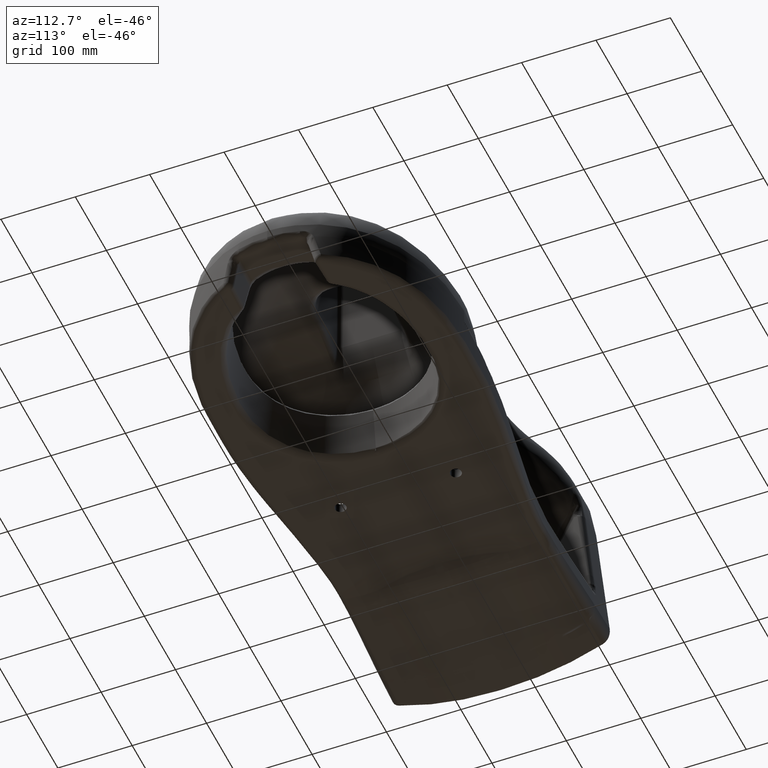
[diagram: clean part render]
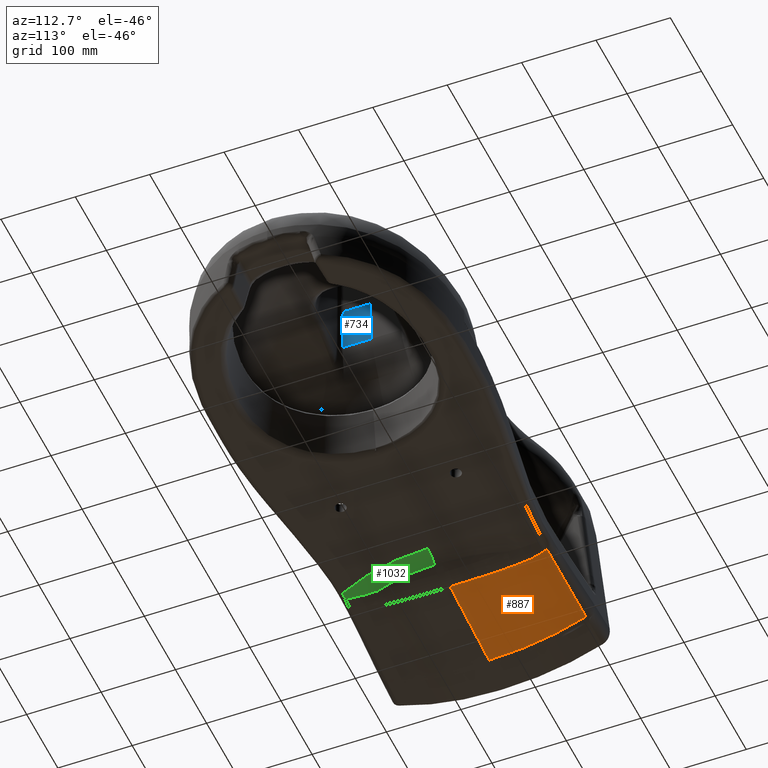
[diagram: same view with three faces highlighted in distinct colors, each labeled with its STEP entity id]
A machine part, auxiliary view with three faces highlighted in distinct colors.
Their STEP definitions:

[orange] entity #887 — the highlighted face is a freeform B-spline surface patch.
#887=ADVANCED_FACE('',(#1469),#1144,.T.);
#1144=B_SPLINE_SURFACE_WITH_KNOTS('',3,3,((#40942,#40943,#40944,#40945,
#40946,#40947,#40948,#40949,#40950,#40951,#40952,#40953,#40954,#40955,#40956,
#40957,#40958,#40959,#40960,#40961,#40962,#40963,#40964,#40965,#40966,#40967),
(#40968,#40969,#40970,#40971,#40972,#40973,#40974,#40975,#40976,#40977,
#40978,#40979,#40980,#40981,#40982,#40983,#40984,#40985,#40986,#40987,#40988,
#40989,#40990,#40991,#40992,#40993),(#40994,#40995,#40996,#40997,#40998,
#40999,#41000,#41001,#41002,#41003,#41004,#41005,#41006,#41007,#41008,#41009,
#41010,#41011,#41012,#41013,#41014,#41015,#41016,#41017,#41018,#41019),
(#41020,#41021,#41022,#41023,#41024,#41025,#41026,#41027,#41028,#41029,
#41030,#41031,#41032,#41033,#41034,#41035,#41036,#41037,#41038,#41039,#41040,
#41041,#41042,#41043,#41044,#41045)),.UNSPECIFIED.,.F.,.F.,.F.,(4,4),(4,
1,1,1,1,1,1,1,1,1,1,1,1,1,1,1,1,1,1,1,1,1,1,4),(0.,1.),(0.,0.0078125,0.015625,
0.03125,0.0625,0.09375,0.125,0.1875,0.21875,0.25,0.3125,0.375,0.5,0.625,
0.6875,0.75,0.78125,0.8125,0.875,0.90625,0.9375,0.96875,0.984375,1.),
 .UNSPECIFIED.);
#1469=FACE_OUTER_BOUND('',#1894,.T.);
#1894=EDGE_LOOP('',(#3359,#3360,#3361,#3362,#3363,#3364,#3365));
#3359=ORIENTED_EDGE('',*,*,#5409,.T.);
#3360=ORIENTED_EDGE('',*,*,#5434,.T.);
#3361=ORIENTED_EDGE('',*,*,#5421,.F.);
#3362=ORIENTED_EDGE('',*,*,#5425,.T.);
#3363=ORIENTED_EDGE('',*,*,#5435,.T.);
#3364=ORIENTED_EDGE('',*,*,#5436,.T.);
#3365=ORIENTED_EDGE('',*,*,#5437,.T.);
#4529=VERTEX_POINT('',#38287);
#4547=VERTEX_POINT('',#40014);
#4551=VERTEX_POINT('',#40559);
#4552=VERTEX_POINT('',#40573);
#4554=VERTEX_POINT('',#40724);
#4559=VERTEX_POINT('',#40932);
#4560=VERTEX_POINT('',#40937);
#5409=EDGE_CURVE('',#4547,#4529,#6243,.T.);
#5421=EDGE_CURVE('',#4551,#4552,#6255,.T.);
#5425=EDGE_CURVE('',#4551,#4554,#6259,.T.);
#5434=EDGE_CURVE('',#4529,#4552,#6266,.T.);
#5435=EDGE_CURVE('',#4554,#4559,#6267,.T.);
#5436=EDGE_CURVE('',#4559,#4560,#6268,.T.);
#5437=EDGE_CURVE('',#4560,#4547,#6269,.T.);
#6243=B_SPLINE_CURVE_WITH_KNOTS('',3,(#39964,#39965,#39966,#39967,#39968,
#39969,#39970,#39971,#39972,#39973,#39974,#39975,#39976,#39977,#39978,#39979,
#39980,#39981,#39982,#39983,#39984,#39985,#39986,#39987,#39988,#39989,#39990,
#39991,#39992,#39993,#39994,#39995,#39996,#39997,#39998,#39999,#40000,#40001,
#40002,#40003,#40004,#40005,#40006,#40007,#40008,#40009,#40010,#40011,#40012,
#40013),.UNSPECIFIED.,.F.,.F.,(4,2,2,2,1,1,1,2,2,2,2,2,2,2,2,2,2,1,1,2,
2,2,2,2,1,2,2,4),(0.,0.249999999999983,0.374999999999975,0.43749999999997,
0.468749999999968,0.484374999999967,0.492187499999967,0.496093749999967,
0.499999999999967,0.562499999999966,0.593749999999966,0.609374999999965,
0.617187499999965,0.624999999999965,0.687499999999966,0.718749999999966,
0.734374999999967,0.742187499999968,0.746093749999969,0.748046874999969,
0.749999999999969,0.812499999999973,0.843749999999975,0.859374999999975,
0.867187499999976,0.871093749999977,0.874999999999977,1.),.UNSPECIFIED.);
#6255=B_SPLINE_CURVE_WITH_KNOTS('',3,(#40560,#40561,#40562,#40563,#40564,
#40565,#40566,#40567,#40568,#40569,#40570,#40571,#40572),.UNSPECIFIED.,
 .F.,.F.,(4,1,1,1,1,1,1,1,1,1,4),(0.,0.0625003802906181,0.125000760581236,
0.250001521162472,0.375002281743709,0.500003042324945,0.625003802906181,
0.750004563487417,0.875005324068654,0.937505704359272,1.),.UNSPECIFIED.);
#6259=B_SPLINE_CURVE_WITH_KNOTS('',3,(#40726,#40727,#40728,#40729,#40730,
#40731,#40732,#40733,#40734),.UNSPECIFIED.,.F.,.F.,(4,1,1,1,1,1,4),(0.,
0.0727097936051356,0.175740593722454,0.381802193957091,0.587863794191728,
0.999986994661001,1.),.UNSPECIFIED.);
#6266=B_SPLINE_CURVE_WITH_KNOTS('',3,(#40902,#40903,#40904,#40905,#40906,
#40907,#40908,#40909,#40910,#40911,#40912,#40913,#40914,#40915,#40916,#40917,
#40918,#40919,#40920,#40921,#40922,#40923,#40924,#40925,#40926,#40927),
 .UNSPECIFIED.,.F.,.F.,(4,2,2,1,1,2,2,2,2,1,1,1,1,2,2,4),(0.,0.250000000000007,
0.375000000000011,0.437500000000012,0.468750000000013,0.484375000000014,
0.500000000000015,0.625000000000021,0.687500000000025,0.718750000000026,
0.734375000000027,0.742187500000027,0.746093750000027,0.748046875000028,
0.750000000000028,1.),.UNSPECIFIED.);
#6267=B_SPLINE_CURVE_WITH_KNOTS('',3,(#40928,#40929,#40930,#40931),
 .UNSPECIFIED.,.F.,.F.,(4,4),(0.,1.),.UNSPECIFIED.);
#6268=B_SPLINE_CURVE_WITH_KNOTS('',3,(#40933,#40934,#40935,#40936),
 .UNSPECIFIED.,.F.,.F.,(4,4),(0.,1.),.UNSPECIFIED.);
#6269=B_SPLINE_CURVE_WITH_KNOTS('',3,(#40938,#40939,#40940,#40941),
 .UNSPECIFIED.,.F.,.F.,(4,4),(0.,1.),.UNSPECIFIED.);
#38287=CARTESIAN_POINT('',(49.1034926905349,288.699473302419,-7.4142759166724));
#39964=CARTESIAN_POINT('',(49.1034186348393,158.524999999994,-32.8681138931149));
#39965=CARTESIAN_POINT('',(49.1034249232902,169.864159904032,-32.868121892641));
#39966=CARTESIAN_POINT('',(49.100862796629,181.107843913172,-32.3147940674719));
#39967=CARTESIAN_POINT('',(49.099825627548,197.747969329929,-30.697644791755));
#39968=CARTESIAN_POINT('',(49.0998670437258,203.257200241764,-30.0274206809527));
#39969=CARTESIAN_POINT('',(49.1011954016386,211.455339499791,-28.8309077129543));
#39970=CARTESIAN_POINT('',(49.1018584496097,214.177108593645,-28.4002060840552));
#39971=CARTESIAN_POINT('',(49.1026929205092,218.242142047872,-27.7071265599404));
#39972=CARTESIAN_POINT('',(49.1030695783846,220.270254217091,-27.3488300748095));
#39973=CARTESIAN_POINT('',(49.1033265747545,222.628419033638,-26.9104116630379));
#39974=CARTESIAN_POINT('',(49.1033952612057,223.80547807177,-26.6861220557886));
#39975=CARTESIAN_POINT('',(49.1034103527941,224.309494961915,-26.5889115374371));
#39976=CARTESIAN_POINT('',(49.1034170553622,224.645408737457,-26.5238633535023));
#39977=CARTESIAN_POINT('',(49.1034187044337,224.854990916483,-26.4830841477399));
#39978=CARTESIAN_POINT('',(49.1034175202034,227.000138998072,-26.0643637717254));
#39979=CARTESIAN_POINT('',(49.1045399690511,229.362935049648,-25.58479298665));
#39980=CARTESIAN_POINT('',(49.1047624281984,233.415098740704,-24.7047369335691));
#39981=CARTESIAN_POINT('',(49.1045760911339,234.850444695246,-24.3845050692997));
#39982=CARTESIAN_POINT('',(49.1040572956808,237.129135152603,-23.8588282046221));
#39983=CARTESIAN_POINT('',(49.1038561174878,237.909642597897,-23.6760402005649));
#39984=CARTESIAN_POINT('',(49.1036074239813,239.111644240845,-23.3898244025215));
#39985=CARTESIAN_POINT('',(49.103533827062,239.517518060678,-23.2924130705864));
#39986=CARTESIAN_POINT('',(49.1034270017804,240.339647949797,-23.0934579931087));
#39987=CARTESIAN_POINT('',(49.103393766281,240.716417899094,-23.0016278156976));
#39988=CARTESIAN_POINT('',(49.1033934397802,244.864673120694,-21.9811589842279));
#39989=CARTESIAN_POINT('',(49.099775957917,248.036798008012,-21.1370436883991));
#39990=CARTESIAN_POINT('',(49.1001363674521,252.037315282404,-20.0293297909989));
#39991=CARTESIAN_POINT('',(49.1008771759358,253.244511872417,-19.68631962173));
#39992=CARTESIAN_POINT('',(49.1021174593259,254.867399216619,-19.2174298869454));
#39993=CARTESIAN_POINT('',(49.1025422016221,255.377041074749,-19.0687251878471));
#39994=CARTESIAN_POINT('',(49.1030301873427,256.094692017812,-18.8577277658472));
#39995=CARTESIAN_POINT('',(49.1032364206032,256.44181425091,-18.755242758916));
#39996=CARTESIAN_POINT('',(49.1033708311346,256.826343499031,-18.6410850423433));
#39997=CARTESIAN_POINT('',(49.1034012332981,256.986763758083,-18.5933327363341));
#39998=CARTESIAN_POINT('',(49.1034149622338,257.092738087835,-18.5617598879872));
#39999=CARTESIAN_POINT('',(49.1034184904376,257.100179981922,-18.5595522016248));
#40000=CARTESIAN_POINT('',(49.1034232501064,260.303617304497,-17.6034962121108));
#40001=CARTESIAN_POINT('',(49.1035197307951,263.174968686944,-16.6981937818947));
#40002=CARTESIAN_POINT('',(49.1041054129154,267.134339416053,-15.4004775121177));
#40003=CARTESIAN_POINT('',(49.1041291212013,268.39622119624,-14.9779012713517));
#40004=CARTESIAN_POINT('',(49.104388432536,270.202575220737,-14.3621888901252));
#40005=CARTESIAN_POINT('',(49.104505891776,270.790282482629,-14.1599741051512));
#40006=CARTESIAN_POINT('',(49.1046866918289,271.650292894334,-13.8615537964116));
#40007=CARTESIAN_POINT('',(49.1047770682244,272.074910677028,-13.7135688182751));
#40008=CARTESIAN_POINT('',(49.104849571226,272.491461282516,-13.5674879583821));
#40009=CARTESIAN_POINT('',(49.1048913159796,272.767370634446,-13.470531048393));
#40010=CARTESIAN_POINT('',(49.1049045588969,272.858512264565,-13.4384693952289));
#40011=CARTESIAN_POINT('',(49.1054754723965,278.867217337643,-11.3183457604493));
#40012=CARTESIAN_POINT('',(49.1033709792051,284.089446080241,-9.27273630209305));
#40013=CARTESIAN_POINT('',(49.1034186332395,288.698772194413,-7.41253866149019));
#40014=CARTESIAN_POINT('',(49.1034040860991,158.524999573848,-32.8679556671332));
#40559=CARTESIAN_POINT('',(169.137372865242,240.15136873692,-13.1249940288783));
#40560=CARTESIAN_POINT('',(169.137372865242,240.15136873692,-13.1249940288783));
#40561=CARTESIAN_POINT('',(169.021260526215,241.125797248004,-12.9214702369093));
#40562=CARTESIAN_POINT('',(168.788034367173,243.072863554094,-12.5063672385092));
#40563=CARTESIAN_POINT('',(168.326657899586,246.960323601929,-11.6428475155558));
#40564=CARTESIAN_POINT('',(167.776482861872,251.808056916003,-10.4989369972556));
#40565=CARTESIAN_POINT('',(167.213236338117,257.609731899522,-9.01647458209387));
#40566=CARTESIAN_POINT('',(166.80407238039,263.392899638549,-7.41982654003898));
#40567=CARTESIAN_POINT('',(166.60611003322,269.154657881965,-5.70457703739924));
#40568=CARTESIAN_POINT('',(166.703436039333,274.884153602136,-3.87093171295987));
#40569=CARTESIAN_POINT('',(167.159048263085,279.608034237236,-2.24924787390814));
#40570=CARTESIAN_POINT('',(167.773654451663,283.331396896031,-0.892370319364332));
#40571=CARTESIAN_POINT('',(168.174447225811,285.168597492445,-0.197260168823203));
#40572=CARTESIAN_POINT('',(168.400737417288,286.07957339512,0.153658536019241));
#40573=CARTESIAN_POINT('',(168.40086860961,286.079843459462,0.152872856420304));
#40724=CARTESIAN_POINT('',(174.201427384095,158.524999963357,-21.3717127476495));
#40726=CARTESIAN_POINT('',(169.138146882239,240.151481975557,-13.1250945131117));
#40727=CARTESIAN_POINT('',(169.369555868553,238.209802210002,-13.5307171681475));
#40728=CARTESIAN_POINT('',(169.927002211496,233.508648023706,-14.4721611384838));
#40729=CARTESIAN_POINT('',(171.066145824876,223.249806664631,-16.3212715134277));
#40730=CARTESIAN_POINT('',(172.314099107575,209.301932360692,-18.3673013683981));
#40731=CARTESIAN_POINT('',(173.760242683139,186.824144511541,-20.6873125786835));
#40732=CARTESIAN_POINT('',(174.202894186694,169.844945371093,-21.3711734794687));
#40733=CARTESIAN_POINT('',(174.202943224459,158.525357200071,-21.3711848337436));
#40734=CARTESIAN_POINT('',(174.202943225713,158.525000000001,-21.3711848336479));
#40902=CARTESIAN_POINT('',(49.1034204895694,288.698915985801,-7.41248048731549));
#40903=CARTESIAN_POINT('',(59.9944883001794,288.435563412615,-6.67380411663091));
#40904=CARTESIAN_POINT('',(70.28399737905,288.202413478332,-5.98679268375202));
#40905=CARTESIAN_POINT('',(84.8137544172473,287.876225906971,-5.03387859519197));
#40906=CARTESIAN_POINT('',(89.5062842855716,287.771433647767,-4.72916369368346));
#40907=CARTESIAN_POINT('',(96.3189655910217,287.617584331535,-4.29142556817906));
#40908=CARTESIAN_POINT('',(99.6687802472604,287.541496423175,-4.07739000136851));
#40909=CARTESIAN_POINT('',(103.477994248233,287.453651995437,-3.83612893769635));
#40910=CARTESIAN_POINT('',(105.089324308313,287.416146218953,-3.73454017925091));
#40911=CARTESIAN_POINT('',(106.158835809546,287.391167670384,-3.66721616580819));
#40912=CARTESIAN_POINT('',(106.730494467974,287.377767688678,-3.63129170046042));
#40913=CARTESIAN_POINT('',(111.147606672714,287.273874299572,-3.35411978627534));
#40914=CARTESIAN_POINT('',(115.499297720532,287.166332410424,-3.08500627388052));
#40915=CARTESIAN_POINT('',(122.661984190308,286.988562655315,-2.64669127610049));
#40916=CARTESIAN_POINT('',(125.155400425137,286.926573643711,-2.49480998824195));
#40917=CARTESIAN_POINT('',(129.053910669554,286.830372202027,-2.25823687254887));
#40918=CARTESIAN_POINT('',(131.042761976266,286.78146789611,-2.13776231381194));
#40919=CARTESIAN_POINT('',(133.432292534801,286.723208604783,-1.99335864436073));
#40920=CARTESIAN_POINT('',(134.644347466414,286.693803833007,-1.92019154029496));
#40921=CARTESIAN_POINT('',(135.25469592088,286.6790359273,-1.88336632243901));
#40922=CARTESIAN_POINT('',(135.517199602907,286.672693136367,-1.86753226298195));
#40923=CARTESIAN_POINT('',(135.692407767868,286.668461606362,-1.85696470286096));
#40924=CARTESIAN_POINT('',(135.7412216471,286.667282784323,-1.85402057904216));
#40925=CARTESIAN_POINT('',(152.085888344029,286.272904959679,-0.868367810756779));
#40926=CARTESIAN_POINT('',(162.912924367914,286.121895583039,-0.198310296082412));
#40927=CARTESIAN_POINT('',(168.400803515094,286.079839481723,0.1537610359087));
#40928=CARTESIAN_POINT('',(174.201391962718,158.525139644807,-21.3713274389934));
#40929=CARTESIAN_POINT('',(158.872094167661,158.525047361688,-22.7805277486326));
#40930=CARTESIAN_POINT('',(143.541001886363,158.524954485342,-24.189727691153));
#40931=CARTESIAN_POINT('',(128.209109888161,158.52486101575,-25.5988546388614));
#40932=CARTESIAN_POINT('',(128.208947487073,158.524994982752,-25.5970876513197));
#40933=CARTESIAN_POINT('',(128.209109789988,158.52514127723,-25.598854647971));
#40934=CARTESIAN_POINT('',(112.878273362086,158.525047549414,-27.0078845801886));
#40935=CARTESIAN_POINT('',(97.5466373273969,158.524953407662,-28.4168415276447));
#40936=CARTESIAN_POINT('',(82.2151962498124,158.524858851962,-29.8256528776457));
#40937=CARTESIAN_POINT('',(82.2150694728228,158.524996099842,-29.8242742258751));
#40938=CARTESIAN_POINT('',(82.2151961581706,158.525102134448,-29.8256528862255));
#40939=CARTESIAN_POINT('',(71.1777122382649,158.525034120134,-30.8398910484474));
#40940=CARTESIAN_POINT('',(60.1403293629992,158.524965971985,-31.8540537487241));
#40941=CARTESIAN_POINT('',(49.1034186349798,158.52489769,-32.8681138930096));
#40942=CARTESIAN_POINT('',(-4.6583160486944E-8,291.02523935134,-10.3805494499125));
#40943=CARTESIAN_POINT('',(-4.65831605338095E-8,290.375297897052,-10.6639724274325));
#40944=CARTESIAN_POINT('',(-4.65831604266565E-8,289.062276235828,-11.2000452247256));
#40945=CARTESIAN_POINT('',(-4.65831605190842E-8,286.447279876102,-12.2980861664943));
#40946=CARTESIAN_POINT('',(-4.65831604543313E-8,281.840044313641,-14.1448008331624));
#40947=CARTESIAN_POINT('',(-4.65831604851265E-8,275.21627151657,-16.6760027006395));
#40948=CARTESIAN_POINT('',(-4.65831604941556E-8,267.192408581047,-19.5088523623163));
#40949=CARTESIAN_POINT('',(-4.65831604880751E-8,256.401393701111,-23.0133771990192));
#40950=CARTESIAN_POINT('',(-4.65831604834877E-8,245.48345708154,-26.1092630577152));
#40951=CARTESIAN_POINT('',(-4.65831604805741E-8,234.459332461579,-28.7911803284476));
#40952=CARTESIAN_POINT('',(-4.65831604788362E-8,223.371327087772,-31.1953420038854));
#40953=CARTESIAN_POINT('',(-4.65831604789812E-8,209.40450254408,-33.6764213507824));
#40954=CARTESIAN_POINT('',(-4.65831604814154E-8,186.886566307617,-36.5206460120059));
#40955=CARTESIAN_POINT('',(-4.65831604834456E-8,158.525103693184,-37.9517842263422));
#40956=CARTESIAN_POINT('',(-4.65831604833663E-8,130.163120588111,-36.5205935791714));
#40957=CARTESIAN_POINT('',(-4.65831604835137E-8,107.645024336019,-33.6781120065105));
#40958=CARTESIAN_POINT('',(-4.65831604836499E-8,93.6783264472984,-31.1974340171921));
#40959=CARTESIAN_POINT('',(-4.65831604837587E-8,82.5906303009357,-28.7923214817821));
#40960=CARTESIAN_POINT('',(-4.65831604838677E-8,71.5668917275828,-26.1089780601851));
#40961=CARTESIAN_POINT('',(-4.65831604839765E-8,60.6493637086485,-23.0115121239822));
#40962=CARTESIAN_POINT('',(-4.65831604840855E-8,49.8585946339368,-19.5063713025226));
#40963=CARTESIAN_POINT('',(-4.65831604841672E-8,41.834034397465,-16.6752901511369));
#40964=CARTESIAN_POINT('',(-4.65831604842352E-8,35.2082789229167,-14.1488778350206));
#40965=CARTESIAN_POINT('',(-4.65831604842896E-8,29.9470699255108,-12.0282471218195));
#40966=CARTESIAN_POINT('',(-4.65831604843169E-8,27.3300253123395,-10.9348991373943));
#40967=CARTESIAN_POINT('',(-4.65831604843305E-8,26.0250000000001,-10.3800005696284));
#40968=CARTESIAN_POINT('',(56.6255830499196,289.719500224238,-6.24842863860561));
#40969=CARTESIAN_POINT('',(56.5421722148385,289.087751427292,-6.51895953380289));
#40970=CARTESIAN_POINT('',(56.3914238371756,287.810120045447,-7.04169231327252));
#40971=CARTESIAN_POINT('',(56.1409132090283,285.246007872919,-8.10728597142768));
#40972=CARTESIAN_POINT('',(55.8014272062148,280.709460021416,-9.91425153514367));
#40973=CARTESIAN_POINT('',(55.5394347124484,274.141932390033,-12.3773536814729));
#40974=CARTESIAN_POINT('',(55.5254972274262,266.170008475795,-15.1208810444427));
#40975=CARTESIAN_POINT('',(55.7316247798547,255.455517638038,-18.4921653077127));
#40976=CARTESIAN_POINT('',(56.1616747559121,244.634334172406,-21.4358195755584));
#40977=CARTESIAN_POINT('',(56.6018892339291,233.716268617313,-23.9718605439194));
#40978=CARTESIAN_POINT('',(57.0117589860073,222.736449748258,-26.239954451777));
#40979=CARTESIAN_POINT('',(57.4277434135737,208.905152936325,-28.5760173013652));
#40980=CARTESIAN_POINT('',(57.9097912720951,186.607337071911,-31.2455041456093));
#40981=CARTESIAN_POINT('',(58.1557036005797,158.525427332373,-32.5795110185327));
#40982=CARTESIAN_POINT('',(57.9098885165272,130.443165581505,-31.2455120901045));
#40983=CARTESIAN_POINT('',(57.4279342281664,108.145234733444,-28.5772041929689));
#40984=CARTESIAN_POINT('',(57.0120164767928,94.3140159730104,-26.2414087813082));
#40985=CARTESIAN_POINT('',(56.6022138090673,83.3343966139638,-23.9726717088331));
#40986=CARTESIAN_POINT('',(56.1620788870597,72.4165817438182,-21.4356619347375));
#40987=CARTESIAN_POINT('',(55.7321145859906,61.5956680497416,-18.4909205523248));
#40988=CARTESIAN_POINT('',(55.5259586217893,50.8813331319918,-15.1192485010858));
#40989=CARTESIAN_POINT('',(55.5397678567077,42.9089339100076,-12.3769159701513));
#40990=CARTESIAN_POINT('',(55.8016992908898,36.3400177267784,-9.91714795820594));
#40991=CARTESIAN_POINT('',(56.1894963309559,31.1582391843236,-7.84507589457638));
#40992=CARTESIAN_POINT('',(56.4586864474532,28.5982655584697,-6.78083793288145));
#40993=CARTESIAN_POINT('',(56.6256128534813,27.3311440420107,-6.24833304710435));
#40994=CARTESIAN_POINT('',(113.279471958136,289.654234348891,-2.1123565258662));
#40995=CARTESIAN_POINT('',(113.112650287973,289.034217411101,-2.36999533874077));
#40996=CARTESIAN_POINT('',(112.811153532648,287.779054712264,-2.87938810038691));
#40997=CARTESIAN_POINT('',(112.310132276353,285.239983534188,-3.91253447492861));
#40998=CARTESIAN_POINT('',(111.631160270726,280.728897806339,-5.67975093569244));
#40999=CARTESIAN_POINT('',(111.107175283193,274.153007358783,-8.0747533608739));
#41000=CARTESIAN_POINT('',(111.079300313149,266.155492887594,-10.7289584251367));
#41001=CARTESIAN_POINT('',(111.491555418006,255.414153321037,-13.9670021149737));
#41002=CARTESIAN_POINT('',(112.351655370121,244.586350238365,-16.7584247919692));
#41003=CARTESIAN_POINT('',(113.232084326155,233.670970977159,-19.1485894579587));
#41004=CARTESIAN_POINT('',(114.051823830311,222.695965841878,-21.2806155982362));
#41005=CARTESIAN_POINT('',(114.883792685444,208.870980797978,-23.4716619505155));
#41006=CARTESIAN_POINT('',(115.847888402487,186.586539763654,-25.9664109777802));
#41007=CARTESIAN_POINT('',(116.339713059456,158.525750971563,-27.2032865092907));
#41008=CARTESIAN_POINT('',(115.848082891351,130.464778647451,-25.9664792996052));
#41009=CARTESIAN_POINT('',(114.884174314629,108.180267661462,-23.472345077995));
#41010=CARTESIAN_POINT('',(114.052338811882,94.3553120655903,-21.2814322439919));
#41011=CARTESIAN_POINT('',(113.232733476431,83.3803967228801,-19.1490706344515));
#41012=CARTESIAN_POINT('',(112.352463632416,72.4651327849621,-16.7583945078574));
#41013=CARTESIAN_POINT('',(111.492535030278,61.6374606447632,-13.9663776792349));
#41014=CARTESIAN_POINT('',(111.080223101875,50.8961871129962,-10.7281743982165));
#41015=CARTESIAN_POINT('',(111.107841571712,42.8984193272648,-8.07459048773334));
#41016=CARTESIAN_POINT('',(111.631704440076,36.321734453492,-5.68146677995875));
#41017=CARTESIAN_POINT('',(112.407298520208,31.1676999804986,-3.6579533659008));
#41018=CARTESIAN_POINT('',(112.945678753203,28.6389541492178,-2.62282542693615));
#41019=CARTESIAN_POINT('',(113.279531565259,27.3968148322665,-2.11271422314783));
#41020=CARTESIAN_POINT('',(169.907618016613,290.829298343038,2.02372081814083));
#41021=CARTESIAN_POINT('',(169.65738551137,290.214553213001,1.77897408758896));
#41022=CARTESIAN_POINT('',(169.205140378381,288.968939094363,1.28292134376632));
#41023=CARTESIAN_POINT('',(168.453608493939,286.429068705126,0.28222225283807));
#41024=CARTESIAN_POINT('',(167.435150485499,281.898224741106,-1.4452451049736));
#41025=CARTESIAN_POINT('',(166.649173004199,275.249370963338,-3.77214780900724));
#41026=CARTESIAN_POINT('',(166.607360549133,267.148745318357,-6.33703057456305));
#41027=CARTESIAN_POINT('',(167.225743206418,256.277196200542,-9.44183369096698));
#41028=CARTESIAN_POINT('',(168.51589313459,245.339412678371,-12.0810247771123));
#41029=CARTESIAN_POINT('',(169.836536568641,234.323358888597,-14.3253131407305));
#41030=CARTESIAN_POINT('',(171.066145824876,223.249806664631,-16.3212715134277));
#41031=CARTESIAN_POINT('',(172.314099107575,209.301932360692,-18.3673013683981));
#41032=CARTESIAN_POINT('',(173.760242683139,186.824144511541,-20.6873125786835));
#41033=CARTESIAN_POINT('',(174.497979668593,158.526074610753,-21.8270567687811));
#41034=CARTESIAN_POINT('',(173.760534416436,130.227989657252,-20.6874412778383));
#41035=CARTESIAN_POINT('',(172.314671551353,107.750176888419,-18.3674807317534));
#41036=CARTESIAN_POINT('',(171.066918297233,93.8022834290375,-16.321450475408));
#41037=CARTESIAN_POINT('',(169.837510294056,82.7287112802062,-14.3254643288024));
#41038=CARTESIAN_POINT('',(168.517105528033,71.7126374520575,-12.0811218497097));
#41039=CARTESIAN_POINT('',(167.227212624826,60.7748460432788,-9.44182957487743));
#41040=CARTESIAN_POINT('',(166.608744732222,49.9032730750365,-6.33709506407966));
#41041=CARTESIAN_POINT('',(166.650172436977,41.8026161087142,-3.77225977404771));
#41042=CARTESIAN_POINT('',(167.435966739524,35.1535620303622,-1.44578037044394));
#41043=CARTESIAN_POINT('',(168.599357859721,29.9755912156016,0.529174394042404));
#41044=CARTESIAN_POINT('',(169.406928209214,27.4522329732791,1.53519231027677));
#41045=CARTESIAN_POINT('',(169.907707427298,26.2221557530282,2.02290983207631));

[blue] entity #734 — the highlighted planar face has unit normal (-0.995, 0, 0.0998).
#170=LINE('',#11869,#339);
#174=LINE('',#17004,#343);
#175=LINE('',#17311,#344);
#339=VECTOR('',#6779,1.);
#343=VECTOR('',#6825,1.);
#344=VECTOR('',#6826,1.);
#599=PLANE('',#6576);
#734=ADVANCED_FACE('',(#1316),#599,.F.);
#1316=FACE_OUTER_BOUND('',#1741,.T.);
#1741=EDGE_LOOP('',(#2638,#2639,#2640,#2641));
#2638=ORIENTED_EDGE('',*,*,#4996,.F.);
#2639=ORIENTED_EDGE('',*,*,#5097,.F.);
#2640=ORIENTED_EDGE('',*,*,#5072,.T.);
#2641=ORIENTED_EDGE('',*,*,#5092,.F.);
#4315=VERTEX_POINT('',#11545);
#4320=VERTEX_POINT('',#11870);
#4365=VERTEX_POINT('',#16247);
#4367=VERTEX_POINT('',#16268);
#4996=EDGE_CURVE('',#4320,#4315,#170,.T.);
#5072=EDGE_CURVE('',#4365,#4367,#6015,.T.);
#5092=EDGE_CURVE('',#4315,#4367,#174,.T.);
#5097=EDGE_CURVE('',#4365,#4320,#175,.T.);
#6015=B_SPLINE_CURVE_WITH_KNOTS('',3,(#16269,#16270,#16271,#16272,#16273,
#16274),.UNSPECIFIED.,.F.,.F.,(4,2,4),(0.,0.209091814394291,1.),
 .UNSPECIFIED.);
#6576=AXIS2_PLACEMENT_3D('',#17312,#6827,#6828);
#6779=DIRECTION('',(-0.0997993756290842,0.,-0.995007580184214));
#6825=DIRECTION('',(0.,-1.,0.));
#6826=DIRECTION('',(0.,1.,0.));
#6827=DIRECTION('',(-0.995007580184214,0.,0.0997993756290842));
#6828=DIRECTION('',(-0.0997993756290842,0.,-0.995007580184214));
#11545=CARTESIAN_POINT('',(413.699043104875,153.524999998712,194.585047238566));
#11869=CARTESIAN_POINT('',(413.699043104875,153.524999996135,194.585047238566));
#11870=CARTESIAN_POINT('',(419.419732896455,153.525,251.620771867346));
#16247=CARTESIAN_POINT('',(419.419732896455,117.221079169696,251.620771867346));
#16268=CARTESIAN_POINT('',(413.699043104875,114.404500175682,194.585047238566));
#16269=CARTESIAN_POINT('',(419.419732896455,117.221079169696,251.620771867346));
#16270=CARTESIAN_POINT('',(419.021016427085,117.024771298948,247.645537484704));
#16271=CARTESIAN_POINT('',(418.622299957716,116.8284634282,243.670303102063));
#16272=CARTESIAN_POINT('',(416.715403360522,115.889603763529,224.658394892469));
#16273=CARTESIAN_POINT('',(415.207223232698,115.147051969606,209.621721065518));
#16274=CARTESIAN_POINT('',(413.699043104875,114.404500175682,194.585047238566));
#17004=CARTESIAN_POINT('',(413.699043104875,146.006803727126,194.585047238566));
#17311=CARTESIAN_POINT('',(419.419732896455,111.243337851974,251.620771867346));
#17312=CARTESIAN_POINT('',(413.699043104875,146.006803727126,194.585047238566));

[green] entity #1032 — the highlighted face is a freeform B-spline surface patch.
#554=(
BOUNDED_SURFACE()
B_SPLINE_SURFACE(3,2,((#62060,#62061,#62062),(#62063,#62064,#62065),(#62066,
#62067,#62068),(#62069,#62070,#62071),(#62072,#62073,#62074),(#62075,#62076,
#62077)),.UNSPECIFIED.,.F.,.F.,.F.)
B_SPLINE_SURFACE_WITH_KNOTS((4,2,4),(3,3),(0.,0.5,1.),(0.,1.),
 .UNSPECIFIED.)
GEOMETRIC_REPRESENTATION_ITEM()
RATIONAL_B_SPLINE_SURFACE(((1.,0.913775482572515,1.),(1.,0.917281707109326,
1.),(1.,0.919842662435215,1.),(1.,0.923120414618565,1.),(1.,0.923895388322448,
1.),(1.,0.923879186518872,1.)))
REPRESENTATION_ITEM('')
SURFACE()
);
#1032=ADVANCED_FACE('',(#1614),#554,.T.);
#1614=FACE_OUTER_BOUND('',#2039,.T.);
#2039=EDGE_LOOP('',(#4045,#4046,#4047,#4048,#4049));
#4045=ORIENTED_EDGE('',*,*,#5737,.F.);
#4046=ORIENTED_EDGE('',*,*,#5738,.T.);
#4047=ORIENTED_EDGE('',*,*,#5729,.T.);
#4048=ORIENTED_EDGE('',*,*,#5736,.F.);
#4049=ORIENTED_EDGE('',*,*,#5739,.F.);
#4709=VERTEX_POINT('',#61718);
#4711=VERTEX_POINT('',#61744);
#4715=VERTEX_POINT('',#61948);
#4716=VERTEX_POINT('',#62044);
#4717=VERTEX_POINT('',#62045);
#5729=EDGE_CURVE('',#4711,#4709,#6494,.T.);
#5736=EDGE_CURVE('',#4715,#4709,#6499,.T.);
#5737=EDGE_CURVE('',#4716,#4717,#6500,.T.);
#5738=EDGE_CURVE('',#4716,#4711,#6501,.T.);
#5739=EDGE_CURVE('',#4717,#4715,#6502,.T.);
#6494=B_SPLINE_CURVE_WITH_KNOTS('',3,(#61720,#61721,#61722,#61723,#61724,
#61725,#61726,#61727,#61728,#61729,#61730,#61731,#61732,#61733,#61734,#61735,
#61736,#61737,#61738,#61739,#61740,#61741,#61742,#61743),.UNSPECIFIED.,
 .F.,.F.,(4,2,2,2,1,1,2,2,2,2,2,2,4),(0.,0.25,0.375,0.4375,0.46875,0.484375,
0.4921875,0.5,0.625,0.6875,0.71875,0.75,1.),.UNSPECIFIED.);
#6499=B_SPLINE_CURVE_WITH_KNOTS('',3,(#61949,#61950,#61951,#61952,#61953,
#61954,#61955,#61956,#61957,#61958,#61959,#61960,#61961,#61962,#61963,#61964,
#61965),.UNSPECIFIED.,.F.,.F.,(4,2,2,2,1,1,1,2,2,4),(0.,0.249999999999995,
0.374999999999993,0.437499999999993,0.468749999999992,0.484374999999992,
0.492187499999992,0.496093749999992,0.499999999999992,1.),.UNSPECIFIED.);
#6500=B_SPLINE_CURVE_WITH_KNOTS('',3,(#62038,#62039,#62040,#62041,#62042,
#62043),.UNSPECIFIED.,.F.,.F.,(4,2,4),(0.,0.5,1.),.UNSPECIFIED.);
#6501=B_SPLINE_CURVE_WITH_KNOTS('',3,(#62046,#62047,#62048,#62049),
 .UNSPECIFIED.,.F.,.F.,(4,4),(0.,1.),.UNSPECIFIED.);
#6502=B_SPLINE_CURVE_WITH_KNOTS('',3,(#62050,#62051,#62052,#62053,#62054,
#62055,#62056,#62057,#62058,#62059),.UNSPECIFIED.,.F.,.F.,(4,1,1,1,1,1,
1,4),(0.,0.052453858647888,0.220869962471795,0.389286066295702,0.726118273943516,
0.894534377767423,0.978742429679377,1.),.UNSPECIFIED.);
#61718=CARTESIAN_POINT('',(187.427547007777,66.4263646662645,-4.63866742371753));
#61720=CARTESIAN_POINT('',(183.302188725263,20.9906578906444,3.63622266550005));
#61721=CARTESIAN_POINT('',(182.630826516983,23.4054384278754,3.18504260208552));
#61722=CARTESIAN_POINT('',(182.359379758431,26.4974173668988,2.58320958406762));
#61723=CARTESIAN_POINT('',(182.49236365943,32.1180439037311,1.4991709160607));
#61724=CARTESIAN_POINT('',(182.626026795113,34.1558947693674,1.10789044600688));
#61725=CARTESIAN_POINT('',(182.946439740168,37.4595819689966,0.483348903588363));
#61726=CARTESIAN_POINT('',(183.073182273265,38.6019934575109,0.268905396673794));
#61727=CARTESIAN_POINT('',(183.290997842516,40.377694790921,-0.0612090130588848));
#61728=CARTESIAN_POINT('',(183.406826340567,41.2810689594173,-0.228378373958463));
#61729=CARTESIAN_POINT('',(183.553537822108,42.3622641492691,-0.426898974886146));
#61730=CARTESIAN_POINT('',(183.618834840134,42.8314860212923,-0.512705018241895));
#61731=CARTESIAN_POINT('',(183.662897312522,43.1456024553448,-0.570067896800566));
#61732=CARTESIAN_POINT('',(183.692523118477,43.3547601988486,-0.608198065715343));
#61733=CARTESIAN_POINT('',(183.951431965818,45.1722663720134,-0.939184117635589));
#61734=CARTESIAN_POINT('',(184.229039722904,46.9692582782057,-1.26058553182846));
#61735=CARTESIAN_POINT('',(184.688435759175,49.7957833087022,-1.75547154154953));
#61736=CARTESIAN_POINT('',(184.848718999386,50.7598021694783,-1.92256493772326));
#61737=CARTESIAN_POINT('',(185.098764571186,52.2388089693674,-2.17615727056452));
#61738=CARTESIAN_POINT('',(185.183715720248,52.7373078472613,-2.2611801828716));
#61739=CARTESIAN_POINT('',(185.356628915027,53.7453363115711,-2.4321707640973));
#61740=CARTESIAN_POINT('',(185.449627319454,54.2838928249381,-2.5230087524943));
#61741=CARTESIAN_POINT('',(186.208602673529,58.6582286530038,-3.25696294949476));
#61742=CARTESIAN_POINT('',(186.839305938621,62.5435595091328,-3.9368898820226));
#61743=CARTESIAN_POINT('',(187.426467405884,66.4267243827532,-4.63757853768232));
#61744=CARTESIAN_POINT('',(183.302139097791,20.9906555786719,3.63643777229939));
#61948=CARTESIAN_POINT('',(201.212927899165,148.525000559342,-4.16608744111417));
#61949=CARTESIAN_POINT('',(201.213203241946,148.525000559626,-4.16636609160495));
#61950=CARTESIAN_POINT('',(201.213207537812,140.971514000597,-4.16636954912011));
#61951=CARTESIAN_POINT('',(200.876395597352,133.705846775639,-4.17410436834484));
#61952=CARTESIAN_POINT('',(199.969847870348,123.287015747126,-4.20476152007363));
#61953=CARTESIAN_POINT('',(199.601071547104,119.89374122032,-4.21787874985026));
#61954=CARTESIAN_POINT('',(198.96287713238,114.926742581387,-4.24074746398203));
#61955=CARTESIAN_POINT('',(198.735984314111,113.291559734661,-4.24889325645739));
#61956=CARTESIAN_POINT('',(198.376310863179,110.869699653045,-4.26164072907222));
#61957=CARTESIAN_POINT('',(198.191628719853,109.666363341939,-4.26812094722333));
#61958=CARTESIAN_POINT('',(197.968119222407,108.275926902044,-4.27581352865425));
#61959=CARTESIAN_POINT('',(197.854406890353,107.584091841151,-4.27968550411894));
#61960=CARTESIAN_POINT('',(197.805259353912,107.288318082862,-4.28134962087361));
#61961=CARTESIAN_POINT('',(197.772403045611,107.09129734891,-4.28245998508923));
#61962=CARTESIAN_POINT('',(197.761674062515,107.027070283984,-4.28282225397271));
#61963=CARTESIAN_POINT('',(194.88962724946,89.9280038860514,-4.37950505903466));
#61964=CARTESIAN_POINT('',(190.917249992474,76.5284946883087,-4.51456992462031));
#61965=CARTESIAN_POINT('',(187.427901483216,66.4262466335457,-4.63902492285286));
#62038=CARTESIAN_POINT('',(191.82989603258,20.8915330213212,4.62043004322538));
#62039=CARTESIAN_POINT('',(201.839124695703,40.5877300934869,4.62043004322538));
#62040=CARTESIAN_POINT('',(209.529769836112,61.4944305190215,4.62043004322538));
#62041=CARTESIAN_POINT('',(219.813451726031,104.388880524088,4.62043004322538));
#62042=CARTESIAN_POINT('',(222.426427198599,126.42286197031,4.62043004322538));
#62043=CARTESIAN_POINT('',(222.426406247979,148.525000230785,4.62043004322538));
#62044=CARTESIAN_POINT('',(191.829506745039,20.891730849765,4.62069364453172));
#62045=CARTESIAN_POINT('',(222.426411216086,148.52500023079,4.61962488244722));
#62046=CARTESIAN_POINT('',(191.829527724885,20.8929791200182,4.62043003486842));
#62047=CARTESIAN_POINT('',(189.469244038622,20.9326346601274,4.62037994214549));
#62048=CARTESIAN_POINT('',(186.590506227437,20.9696723968745,4.40332607538868));
#62049=CARTESIAN_POINT('',(183.302189245836,20.9906573707957,3.63622285005995));
#62050=CARTESIAN_POINT('',(222.426416184192,148.52500046158,4.61881972166906));
#62051=CARTESIAN_POINT('',(222.014404054129,148.525001173363,4.61627747182143));
#62052=CARTESIAN_POINT('',(220.279916424308,148.525004968333,4.59037965361501));
#62053=CARTESIAN_POINT('',(217.233352918076,148.525010857,4.2560308380313));
#62054=CARTESIAN_POINT('',(212.081825291345,148.525014490421,2.99904877431682));
#62055=CARTESIAN_POINT('',(207.249283969765,148.525010604201,0.734036863011832));
#62056=CARTESIAN_POINT('',(203.517222692042,148.525005196454,-2.02287165030983));
#62057=CARTESIAN_POINT('',(201.923295733373,148.525001807625,-3.46907452837278));
#62058=CARTESIAN_POINT('',(201.33140575473,148.52500121584,-4.04846524817747));
#62059=CARTESIAN_POINT('',(201.212652556384,148.525001118683,-4.16580879062334));
#62060=CARTESIAN_POINT('',(169.982520599466,27.1403483615904,-5.2804320037367));
#62061=CARTESIAN_POINT('',(177.879457706455,22.9601363205549,4.62043004322542));
#62062=CARTESIAN_POINT('',(189.666436519338,16.7207462768586,4.62043004322556));
#62063=CARTESIAN_POINT('',(180.193841329127,45.6953104759278,-4.89914914659425));
#62064=CARTESIAN_POINT('',(188.360559083226,42.1053082002438,4.62043003980776));
#62065=CARTESIAN_POINT('',(200.42647187173,37.0477827035395,4.62043004322581));
#62066=CARTESIAN_POINT('',(188.103017432707,65.6468810057737,-4.61309969373359));
#62067=CARTESIAN_POINT('',(196.519597416109,62.7850488917083,4.62043004290592));
#62068=CARTESIAN_POINT('',(208.702946872466,58.7524384121845,4.62043004322533));
#62069=CARTESIAN_POINT('',(198.626595470883,106.772641629572,-4.25065311830947));
#62070=CARTESIAN_POINT('',(207.335117838712,105.323604644855,4.62043004354368));
#62071=CARTESIAN_POINT('',(219.724071837781,103.366458581487,4.62043004322538));
#62072=CARTESIAN_POINT('',(201.27613655107,128.028730723488,-4.16421932366959));
#62073=CARTESIAN_POINT('',(210.06462026669,127.335646101623,4.62043004497997));
#62074=CARTESIAN_POINT('',(222.492158534455,126.354327782658,4.62043004322538));
#62075=CARTESIAN_POINT('',(201.212061675519,149.282164749473,-4.16640487980825));
#62076=CARTESIAN_POINT('',(209.998827567307,149.307751529861,4.62043004322538));
#62077=CARTESIAN_POINT('',(222.425213530799,149.343936767135,4.62043004322538));